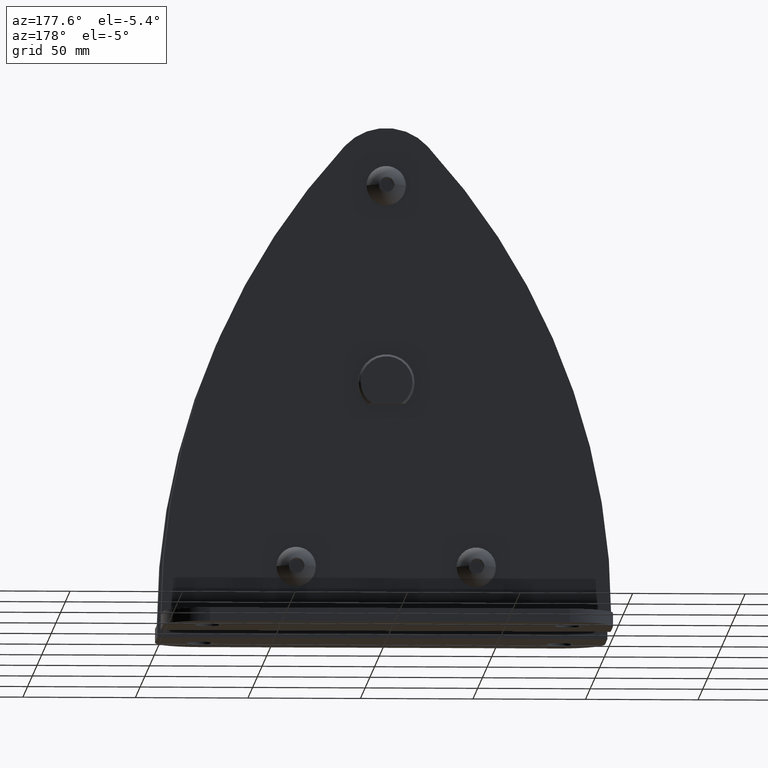
[diagram: clean part render]
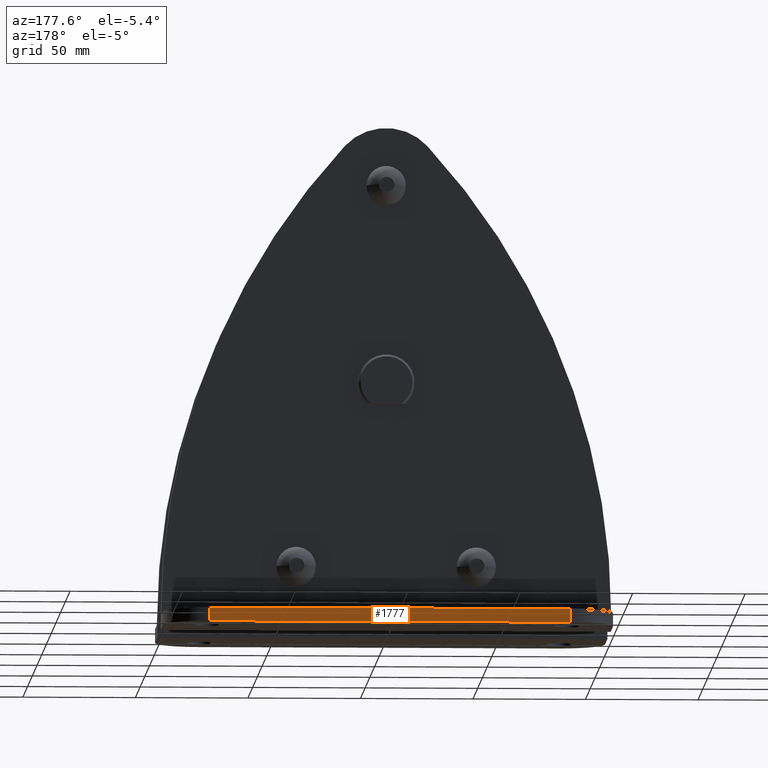
[diagram: same view with one face highlighted and labeled with its STEP entity id]
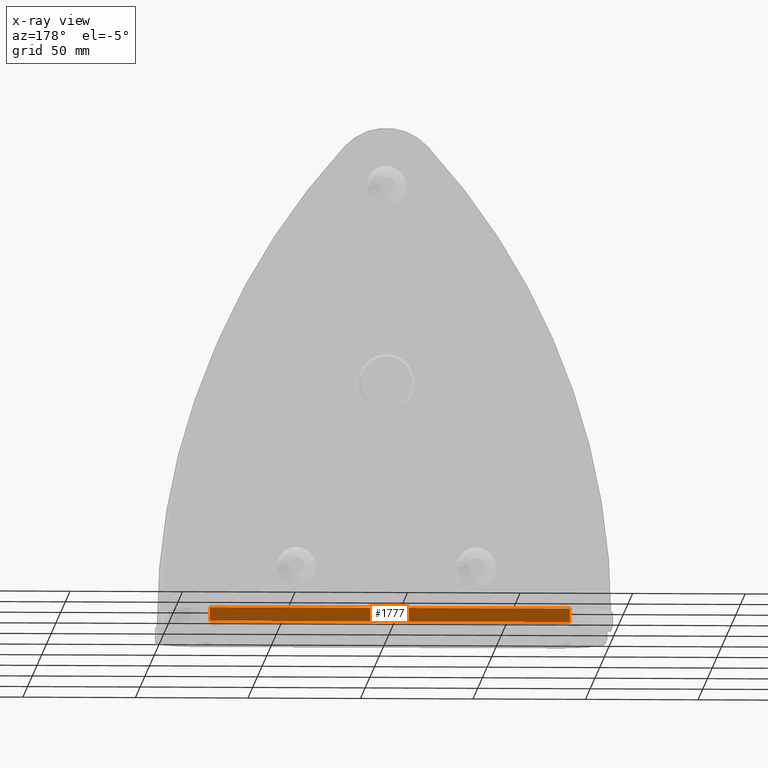
[diagram: x-ray of the same camera — body ghosted, the highlighted face saturated]
A machine part, auxiliary view. The second image highlights one B-rep face of the part: STEP entity #1777.
The next image is the same camera in x-ray: the body ghosted, the highlighted face saturated — about 0% of this face is hidden behind the body in this view.
In plain terms, the highlighted planar face has unit normal (0, 1, 0).
Its self-contained STEP definition (entity closure, byte-faithful):
#1777=ADVANCED_FACE('',(#3738),#3739,.T.);
#3738=FACE_OUTER_BOUND('',#5844,.T.);
#3739=PLANE('',#5845);
#5844=EDGE_LOOP('',(#11499,#11500,#11501,#11502));
#5845=AXIS2_PLACEMENT_3D('',#11503,#11504,#11505);
#11499=ORIENTED_EDGE('',*,*,#14681,.T.);
#11500=ORIENTED_EDGE('',*,*,#14674,.F.);
#11501=ORIENTED_EDGE('',*,*,#14682,.T.);
#11502=ORIENTED_EDGE('',*,*,#14677,.T.);
#11503=CARTESIAN_POINT('',(0.0,62.25,-110.0));
#11504=DIRECTION('',(0.0,1.0,0.0));
#11505=DIRECTION('',(-1.0,0.0,0.0));
#14674=EDGE_CURVE('',#18218,#18213,#18220,.T.);
#14677=EDGE_CURVE('',#18225,#18223,#18226,.T.);
#14681=EDGE_CURVE('',#18223,#18213,#18231,.T.);
#14682=EDGE_CURVE('',#18218,#18225,#18232,.T.);
#18213=VERTEX_POINT('',#25953);
#18218=VERTEX_POINT('',#25959);
#18220=LINE('',#25961,#25962);
#18223=VERTEX_POINT('',#25965);
#18225=VERTEX_POINT('',#25967);
#18226=LINE('',#25968,#25969);
#18231=LINE('',#25975,#25976);
#18232=LINE('',#25977,#25978);
#25953=CARTESIAN_POINT('',(80.0,62.25,-104.0));
#25959=CARTESIAN_POINT('',(80.0,62.25,-110.0));
#25961=CARTESIAN_POINT('',(80.0,62.25,-110.0));
#25962=VECTOR('',#29044,1.0);
#25965=CARTESIAN_POINT('',(-80.0,62.25,-104.0));
#25967=CARTESIAN_POINT('',(-80.0,62.25,-110.0));
#25968=CARTESIAN_POINT('',(-80.0,62.25,-110.0));
#25969=VECTOR('',#29048,1.0);
#25975=CARTESIAN_POINT('',(80.0,62.25,-104.0));
#25976=VECTOR('',#29053,1.0);
#25977=CARTESIAN_POINT('',(80.0,62.25,-110.0));
#25978=VECTOR('',#29054,1.0);
#29044=DIRECTION('',(0.0,0.0,1.0));
#29048=DIRECTION('',(0.0,0.0,1.0));
#29053=DIRECTION('',(1.0,0.0,-0.0));
#29054=DIRECTION('',(-1.0,0.0,0.0));